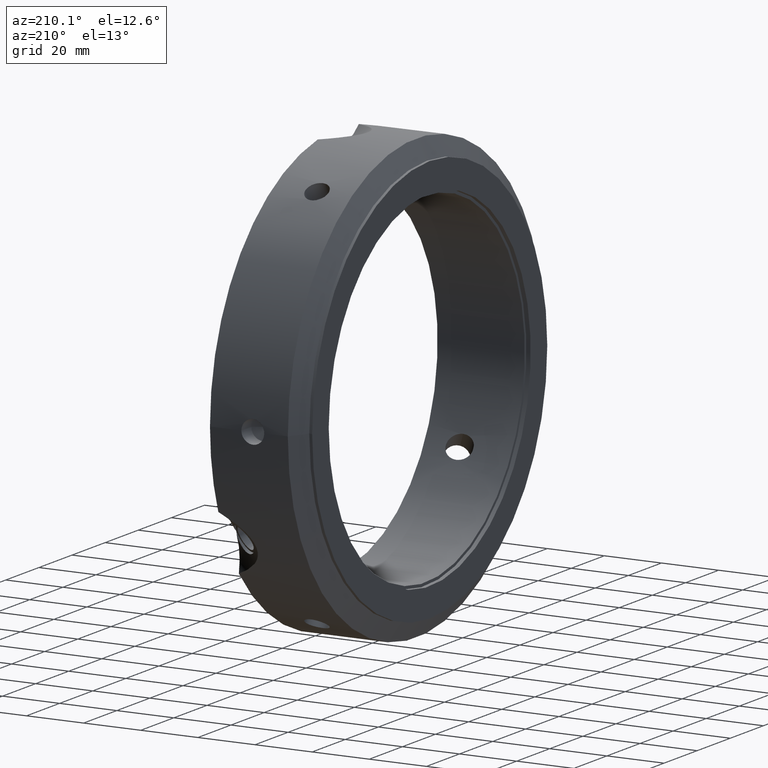
[diagram: clean part render]
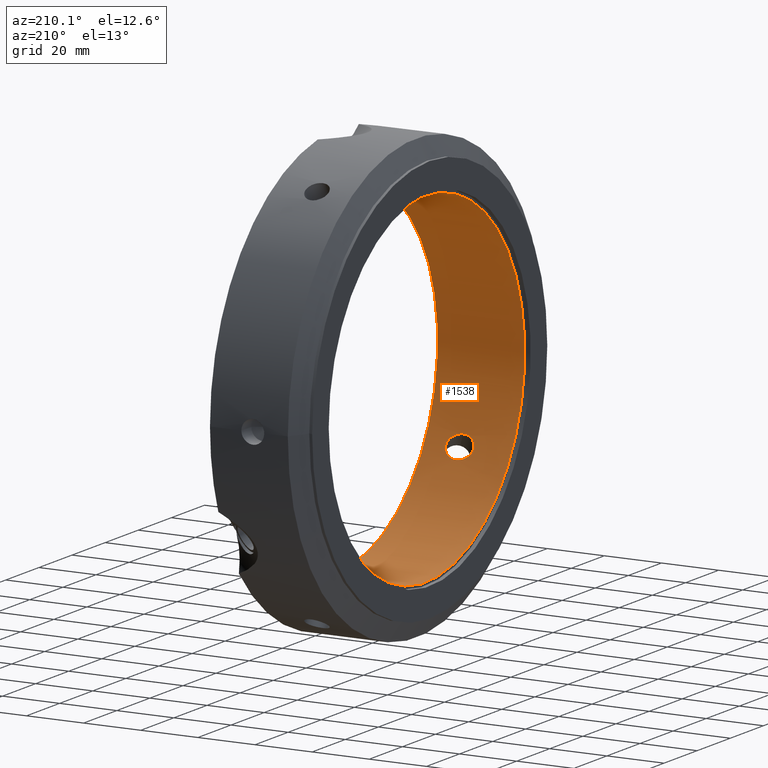
[diagram: same view with one face highlighted and labeled with its STEP entity id]
A machine part, auxiliary view. The second image highlights one B-rep face of the part: STEP entity #1538.
In plain terms, the highlighted cylindrical surface (bore or boss wall) has radius 60 mm, axis along (1, 0, 0).
Its self-contained STEP definition (entity closure, byte-faithful):
#834=CARTESIAN_POINT('',(19.556526908820011,53.928790363229965,-26.299915778549448));
#835=VERTEX_POINT('',#834);
#836=CARTESIAN_POINT('',(19.556526908820011,53.928790363229965,-26.299915778549448));
#837=CARTESIAN_POINT('',(20.177403835720167,53.928790363229965,-26.299915778549448));
#838=CARTESIAN_POINT('',(20.844471587450982,53.881165134353481,-26.398326200877861));
#839=CARTESIAN_POINT('',(22.088667550477719,53.679772825375167,-26.805476531853611));
#840=CARTESIAN_POINT('',(22.665820395959322,53.52572715599274,-27.114003284819155));
#841=CARTESIAN_POINT('',(23.516313357162495,53.174871214486608,-27.794889775011274));
#842=CARTESIAN_POINT('',(23.871035921136748,52.967362492781369,-28.190543070457238));
#843=CARTESIAN_POINT('',(24.351860319364619,52.491935497179085,-29.066216071715004));
#844=CARTESIAN_POINT('',(24.476902006109881,52.223371658356008,-29.546466945174856));
#845=CARTESIAN_POINT('',(24.476902006109881,51.699676795776597,-30.453533054825193));
#846=CARTESIAN_POINT('',(24.351860319364622,51.418049258582236,-30.926241598513762));
#847=CARTESIAN_POINT('',(23.871035921136752,50.897407691885988,-31.775809954979138));
#848=CARTESIAN_POINT('',(23.516313357162488,50.658516247791368,-32.153344427205688));
#849=CARTESIAN_POINT('',(22.665820395959315,50.244279220944449,-32.797637830714777));
#850=CARTESIAN_POINT('',(22.088667550477705,50.054110049820366,-33.085308670225714));
#851=CARTESIAN_POINT('',(20.844471587450968,49.802203674525281,-33.463294691415612));
#852=CARTESIAN_POINT('',(20.17740383572017,49.740790363229962,-33.553744560647907));
#853=CARTESIAN_POINT('',(18.952564850267375,49.740790363229962,-33.553744560647907));
#854=CARTESIAN_POINT('',(18.302720246246366,49.799168544310895,-33.467780741720276));
#855=CARTESIAN_POINT('',(17.095896601618481,50.046087376574839,-33.097411889960973));
#856=CARTESIAN_POINT('',(16.539077627563557,50.234579675844948,-32.812453280620481));
#857=CARTESIAN_POINT('',(15.716875022889042,50.650412900799608,-32.16616970539517));
#858=CARTESIAN_POINT('',(15.376555210697173,50.893041142048745,-31.782873048479765));
#859=CARTESIAN_POINT('',(14.920548823282411,51.418381561013213,-30.925761001987144));
#860=CARTESIAN_POINT('',(14.805130296645267,51.700784887572354,-30.451613783535485));
#861=CARTESIAN_POINT('',(14.805130296645267,52.222263566560244,-29.548386216464571));
#862=CARTESIAN_POINT('',(14.920548823282417,52.491685439593539,-29.066744152325281));
#863=CARTESIAN_POINT('',(15.37655521069718,52.971296036263588,-28.183229980620979));
#864=CARTESIAN_POINT('',(15.716875022889035,53.18192655771341,-27.781459431565992));
#865=CARTESIAN_POINT('',(16.539077627563547,53.533707939429824,-27.098195507404988));
#866=CARTESIAN_POINT('',(17.095896601618474,53.68624318451073,-26.792477083149091));
#867=CARTESIAN_POINT('',(18.302720246246359,53.883532602772803,-26.393454675856081));
#868=CARTESIAN_POINT('',(18.952564850267372,53.928790363229965,-26.299915778549448));
#869=CARTESIAN_POINT('',(19.556526908820015,53.928790363229965,-26.299915778549448));
#870=B_SPLINE_CURVE_WITH_KNOTS('',3,(#836,#837,#838,#839,#840,#841,#842,#843,#844,#845,#846,#847,#848,#849,#850,#851,#852,#853,#854,#855,#856,#857,#858,#859,#860,#861,#862,#863,#864,#865,#866,#867,#868,#869),.UNSPECIFIED.,.T.,.U.,(4,2,2,2,2,2,2,2,2,2,2,2,2,2,2,2,4),(0.0,0.186263078070047,0.372526156140094,0.529634614913916,0.686743073687738,0.84385153246156,1.000959991235383,1.187223069305429,1.373486147375476,1.554674764941268,1.73586338250706,1.892306986203425,2.04875058989979,2.205194193596155,2.36163779729252,2.542826414858312,2.724015032424105),.UNSPECIFIED.);
#871=EDGE_CURVE('',#835,#835,#870,.T.);
#1020=CARTESIAN_POINT('',(19.556526908820011,-49.740790363229991,-33.553744560647864));
#1021=VERTEX_POINT('',#1020);
#1022=CARTESIAN_POINT('',(19.556526908820011,-49.740790363229991,-33.553744560647864));
#1023=CARTESIAN_POINT('',(20.153302602593961,-49.740790363229991,-33.553744560647864));
#1024=CARTESIAN_POINT('',(20.795647377570567,-49.797561937830594,-33.470095263990281));
#1025=CARTESIAN_POINT('',(22.000358379309265,-50.031553196709964,-33.119301575556548));
#1026=CARTESIAN_POINT('',(22.562719318752265,-50.208528046140827,-32.851975778903615));
#1027=CARTESIAN_POINT('',(23.436621552648866,-50.609422212353437,-32.230601752059883));
#1028=CARTESIAN_POINT('',(23.819492263461797,-50.854700068439854,-31.844382624891434));
#1029=CARTESIAN_POINT('',(24.340182822458793,-51.393828360834846,-30.966750417331276));
#1030=CARTESIAN_POINT('',(24.476902006109881,-51.687520833596508,-30.474587798935993));
#1031=CARTESIAN_POINT('',(24.476902006109881,-52.223371658356037,-29.546466945174821));
#1032=CARTESIAN_POINT('',(24.351860319364611,-52.491935497179099,-29.066216071714976));
#1033=CARTESIAN_POINT('',(23.871035921136745,-52.96736249278139,-28.19054307045721));
#1034=CARTESIAN_POINT('',(23.516313357162488,-53.174871214486629,-27.794889775011235));
#1035=CARTESIAN_POINT('',(22.665820395959315,-53.525727155992762,-27.114003284819113));
#1036=CARTESIAN_POINT('',(22.088667550477705,-53.679772825375181,-26.805476531853571));
#1037=CARTESIAN_POINT('',(20.844471587450968,-53.881165134353495,-26.398326200877822));
#1038=CARTESIAN_POINT('',(20.17740383572017,-53.928790363229986,-26.299915778549412));
#1039=CARTESIAN_POINT('',(18.952564850267375,-53.928790363229986,-26.299915778549412));
#1040=CARTESIAN_POINT('',(18.302720246246363,-53.88353260277281,-26.393454675856034));
#1041=CARTESIAN_POINT('',(17.095896601618477,-53.686243184510744,-26.792477083149045));
#1042=CARTESIAN_POINT('',(16.53907762756355,-53.533707939429846,-27.098195507404959));
#1043=CARTESIAN_POINT('',(15.716875022889042,-53.181926557713425,-27.781459431565956));
#1044=CARTESIAN_POINT('',(15.376555210697173,-52.97129603626361,-28.18322998062094));
#1045=CARTESIAN_POINT('',(14.92054882328241,-52.491685439593567,-29.066744152325242));
#1046=CARTESIAN_POINT('',(14.805130296645263,-52.222263566560265,-29.548386216464529));
#1047=CARTESIAN_POINT('',(14.805130296645263,-51.700784887572375,-30.451613783535443));
#1048=CARTESIAN_POINT('',(14.920548823282406,-51.418381561013227,-30.925761001987109));
#1049=CARTESIAN_POINT('',(15.376555210697166,-50.893041142048759,-31.782873048479729));
#1050=CARTESIAN_POINT('',(15.716875022889031,-50.650412900799644,-32.166169705395127));
#1051=CARTESIAN_POINT('',(16.539077627563543,-50.234579675844984,-32.812453280620446));
#1052=CARTESIAN_POINT('',(17.09589660161847,-50.04608737657486,-33.097411889960938));
#1053=CARTESIAN_POINT('',(18.302720246246363,-49.799168544310923,-33.46778074172024));
#1054=CARTESIAN_POINT('',(18.952564850267368,-49.740790363229983,-33.553744560647864));
#1055=CARTESIAN_POINT('',(19.556526908820011,-49.740790363229983,-33.553744560647864));
#1056=B_SPLINE_CURVE_WITH_KNOTS('',3,(#1022,#1023,#1024,#1025,#1026,#1027,#1028,#1029,#1030,#1031,#1032,#1033,#1034,#1035,#1036,#1037,#1038,#1039,#1040,#1041,#1042,#1043,#1044,#1045,#1046,#1047,#1048,#1049,#1050,#1051,#1052,#1053,#1054,#1055),.UNSPECIFIED.,.T.,.U.,(4,2,2,2,2,2,2,2,2,2,2,2,2,2,2,2,4),(0.0,0.179032708132186,0.358065416264371,0.522467452346261,0.686869488428151,0.843977947201974,1.001086405975796,1.187349484045842,1.373612562115889,1.554801179681681,1.735989797247473,1.892433400943838,2.048877004640203,2.205320608336567,2.361764212032931,2.542952829598724,2.724141447164516),.UNSPECIFIED.);
#1057=EDGE_CURVE('',#1021,#1021,#1056,.T.);
#1212=CARTESIAN_POINT('',(19.556526908820015,-4.188,59.853660339197305));
#1213=VERTEX_POINT('',#1212);
#1214=CARTESIAN_POINT('',(19.556526908820015,-4.188,59.853660339197305));
#1215=CARTESIAN_POINT('',(20.177403835720167,-4.188,59.853660339197305));
#1216=CARTESIAN_POINT('',(20.844471587450979,-4.078961459828193,59.861620892293416));
#1217=CARTESIAN_POINT('',(22.088667550477716,-3.625662775554794,59.890785202079265));
#1218=CARTESIAN_POINT('',(22.665820395959319,-3.281447935048297,59.911641115533882));
#1219=CARTESIAN_POINT('',(23.516313357162492,-2.516354966695226,59.948234202216916));
#1220=CARTESIAN_POINT('',(23.871035921136752,-2.069954800895364,59.96635302543632));
#1221=CARTESIAN_POINT('',(24.351860319364622,-1.073886238596833,59.992457670228717));
#1222=CARTESIAN_POINT('',(24.476902006109889,-0.523694862579408,60.0));
#1223=CARTESIAN_POINT('',(24.476902006109889,0.523694862579406,60.0));
#1224=CARTESIAN_POINT('',(24.351860319364622,1.073886238596831,59.992457670228717));
#1225=CARTESIAN_POINT('',(23.871035921136752,2.069954800895361,59.96635302543632));
#1226=CARTESIAN_POINT('',(23.516313357162492,2.516354966695222,59.948234202216923));
#1227=CARTESIAN_POINT('',(22.665820395959319,3.281447935048294,59.911641115533882));
#1228=CARTESIAN_POINT('',(22.088667550477716,3.625662775554793,59.890785202079265));
#1229=CARTESIAN_POINT('',(20.844471587450979,4.078961459828192,59.861620892293416));
#1230=CARTESIAN_POINT('',(20.17740383572017,4.188,59.853660339197305));
#1231=CARTESIAN_POINT('',(18.952564850267379,4.188,59.853660339197305));
#1232=CARTESIAN_POINT('',(18.30272024624637,4.084364058461886,59.861235417576289));
#1233=CARTESIAN_POINT('',(17.095896601618485,3.640155807935888,59.889888973110004));
#1234=CARTESIAN_POINT('',(16.539077627563557,3.299128263584874,59.910648788025412));
#1235=CARTESIAN_POINT('',(15.716875022889042,2.531513656913793,59.947629136961105));
#1236=CARTESIAN_POINT('',(15.37655521069718,2.078254894214842,59.966103029100694));
#1237=CARTESIAN_POINT('',(14.920548823282417,1.073303878580329,59.992505154312369));
#1238=CARTESIAN_POINT('',(14.805130296645267,0.521478678987884,60.0));
#1239=CARTESIAN_POINT('',(14.805130296645267,-0.52147867898788,60.0));
#1240=CARTESIAN_POINT('',(14.920548823282413,-1.073303878580325,59.992505154312369));
#1241=CARTESIAN_POINT('',(15.376555210697173,-2.078254894214835,59.966103029100694));
#1242=CARTESIAN_POINT('',(15.716875022889031,-2.531513656913785,59.947629136961105));
#1243=CARTESIAN_POINT('',(16.539077627563543,-3.29912826358487,59.910648788025412));
#1244=CARTESIAN_POINT('',(17.09589660161847,-3.640155807935881,59.889888973110004));
#1245=CARTESIAN_POINT('',(18.302720246246359,-4.084364058461884,59.861235417576289));
#1246=CARTESIAN_POINT('',(18.952564850267375,-4.188000000000001,59.853660339197305));
#1247=CARTESIAN_POINT('',(19.556526908820018,-4.188000000000001,59.853660339197305));
#1248=B_SPLINE_CURVE_WITH_KNOTS('',3,(#1214,#1215,#1216,#1217,#1218,#1219,#1220,#1221,#1222,#1223,#1224,#1225,#1226,#1227,#1228,#1229,#1230,#1231,#1232,#1233,#1234,#1235,#1236,#1237,#1238,#1239,#1240,#1241,#1242,#1243,#1244,#1245,#1246,#1247),.UNSPECIFIED.,.T.,.U.,(4,2,2,2,2,2,2,2,2,2,2,2,2,2,2,2,4),(0.0,0.186263078070047,0.372526156140093,0.529634614913916,0.686743073687738,0.84385153246156,1.000959991235382,1.187223069305429,1.373486147375476,1.554674764941268,1.73586338250706,1.892306986203425,2.04875058989979,2.205194193596154,2.361637797292519,2.542826414858312,2.724015032424104),.UNSPECIFIED.);
#1249=EDGE_CURVE('',#1213,#1213,#1248,.T.);
#1394=CARTESIAN_POINT('',(31.999999999999989,60.0,0.0));
#1395=VERTEX_POINT('',#1394);
#1396=CARTESIAN_POINT('',(31.999999999999989,0.0,0.0));
#1397=DIRECTION('',(1.0,0.0,0.0));
#1398=DIRECTION('',(0.0,1.0,0.0));
#1399=AXIS2_PLACEMENT_3D('',#1396,#1397,#1398);
#1400=CIRCLE('',#1399,60.0);
#1401=EDGE_CURVE('',#1395,#1395,#1400,.T.);
#1434=CARTESIAN_POINT('',(1.499999999999983,60.0,0.0));
#1435=VERTEX_POINT('',#1434);
#1436=CARTESIAN_POINT('',(1.499999999999983,0.0,0.0));
#1437=DIRECTION('',(1.0,0.0,0.0));
#1438=DIRECTION('',(0.0,1.0,0.0));
#1439=AXIS2_PLACEMENT_3D('',#1436,#1437,#1438);
#1440=CIRCLE('',#1439,60.0);
#1441=EDGE_CURVE('',#1435,#1435,#1440,.T.);
#1518=CARTESIAN_POINT('',(16.749999999999986,0.0,0.0));
#1519=DIRECTION('',(1.0,0.0,0.0));
#1520=DIRECTION('',(0.0,1.0,0.0));
#1521=AXIS2_PLACEMENT_3D('',#1518,#1519,#1520);
#1522=CYLINDRICAL_SURFACE('',#1521,60.0);
#1523=ORIENTED_EDGE('',*,*,#1441,.F.);
#1524=EDGE_LOOP('',(#1523));
#1525=FACE_OUTER_BOUND('',#1524,.T.);
#1526=ORIENTED_EDGE('',*,*,#871,.T.);
#1527=EDGE_LOOP('',(#1526));
#1528=FACE_BOUND('',#1527,.T.);
#1529=ORIENTED_EDGE('',*,*,#1057,.T.);
#1530=EDGE_LOOP('',(#1529));
#1531=FACE_BOUND('',#1530,.T.);
#1532=ORIENTED_EDGE('',*,*,#1249,.T.);
#1533=EDGE_LOOP('',(#1532));
#1534=FACE_BOUND('',#1533,.T.);
#1535=ORIENTED_EDGE('',*,*,#1401,.T.);
#1536=EDGE_LOOP('',(#1535));
#1537=FACE_BOUND('',#1536,.T.);
#1538=ADVANCED_FACE('',(#1525,#1528,#1531,#1534,#1537),#1522,.F.);